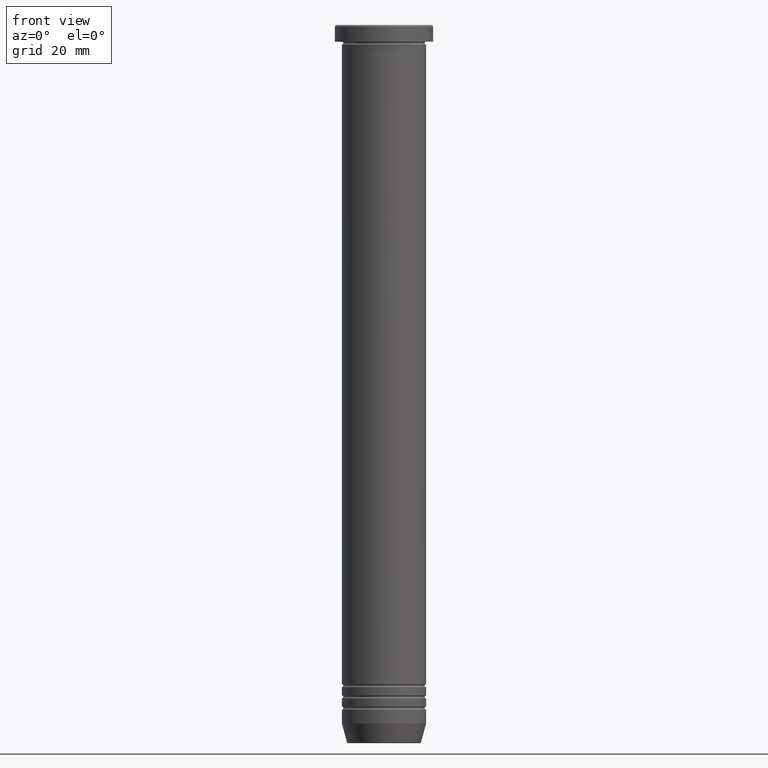
[diagram: clean part render]
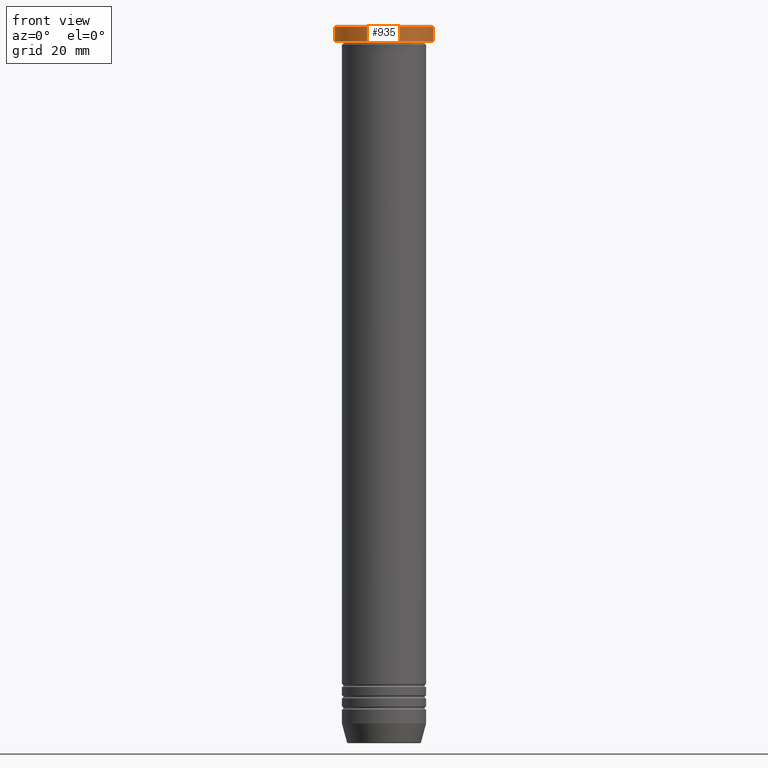
[diagram: same view with one face highlighted and labeled with its STEP entity id]
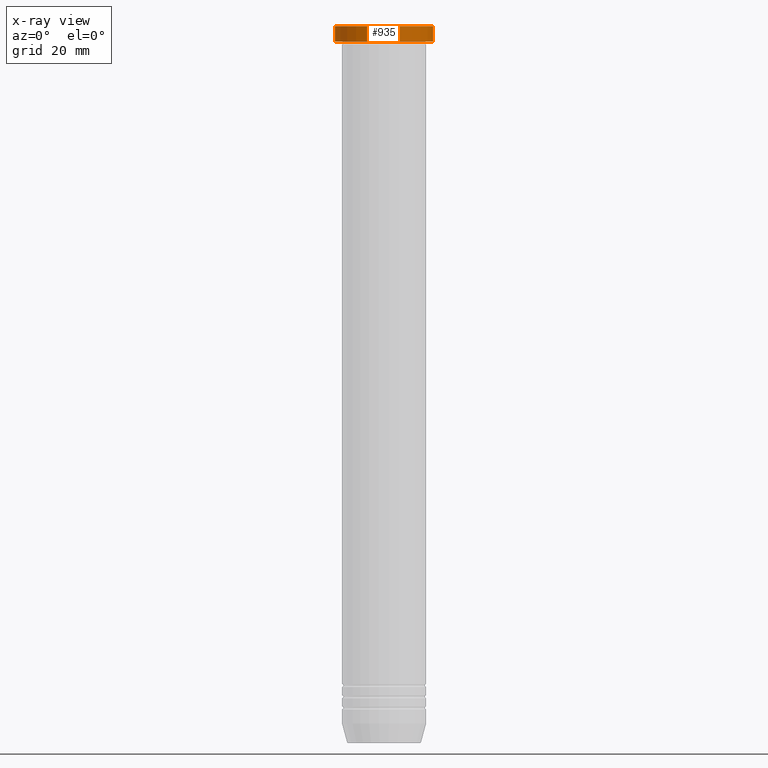
[diagram: x-ray of the same camera — body ghosted, the highlighted face saturated]
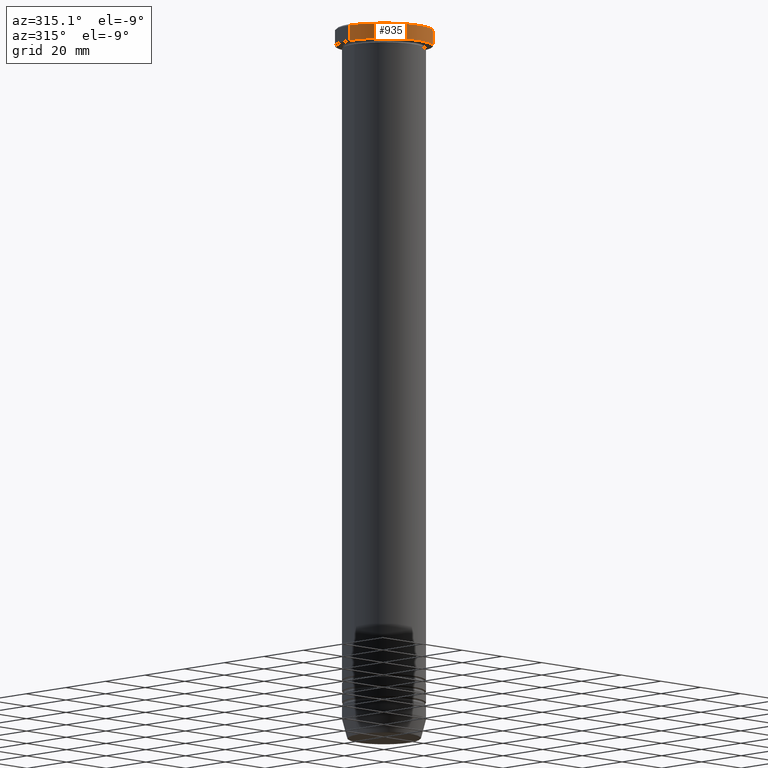
[diagram: same view with one face highlighted and labeled with its STEP entity id]
A machine part, front view. The second image highlights one B-rep face of the part: STEP entity #935.
The next image is the same camera in x-ray: the body ghosted, the highlighted face saturated — about 0% of this face is hidden behind the body in this view.
A second angle (auxiliary view) of the same face is appended — the face is thin or edge-on in the first view.
In plain terms, the highlighted cylindrical surface (partial cylindrical patch) has radius 17.5 mm, axis along (-0, -0, 1).
Its self-contained STEP definition (entity closure, byte-faithful):
#2 = CARTESIAN_POINT ( 'NONE',  ( 0.000000000000000000, 0.000000000000000000, -0.5000000000000073275 ) ) ;
#11 = CIRCLE ( 'NONE', #346, 17.50000000000000000 ) ;
#65 = CARTESIAN_POINT ( 'NONE',  ( 17.50000000000000000, 0.000000000000000000, -5.999999999999999112 ) ) ;
#94 = DIRECTION ( 'NONE',  ( 1.000000000000000000, 0.000000000000000000, 0.000000000000000000 ) ) ;
#105 = VERTEX_POINT ( 'NONE', #752 ) ;
#124 = EDGE_CURVE ( 'NONE', #251, #202, #390, .T. ) ;
#139 = CARTESIAN_POINT ( 'NONE',  ( 17.50000000000000000, 0.000000000000000000, -0.5000000000000073275 ) ) ;
#177 = DIRECTION ( 'NONE',  ( 1.000000000000000000, 0.000000000000000000, 0.000000000000000000 ) ) ;
#202 = VERTEX_POINT ( 'NONE', #139 ) ;
#251 = VERTEX_POINT ( 'NONE', #65 ) ;
#276 = ORIENTED_EDGE ( 'NONE', *, *, #124, .T. ) ;
#346 = AXIS2_PLACEMENT_3D ( 'NONE', #956, #610, #972 ) ;
#389 = ORIENTED_EDGE ( 'NONE', *, *, #1034, .F. ) ;
#390 = LINE ( 'NONE', #928, #946 ) ;
#414 = ORIENTED_EDGE ( 'NONE', *, *, #961, .T. ) ;
#540 = FACE_OUTER_BOUND ( 'NONE', #999, .T. ) ;
#544 = CIRCLE ( 'NONE', #770, 17.50000000000000000 ) ;
#593 = ORIENTED_EDGE ( 'NONE', *, *, #812, .T. ) ;
#610 = DIRECTION ( 'NONE',  ( -0.000000000000000000, -0.000000000000000000, 1.000000000000000000 ) ) ;
#617 = LINE ( 'NONE', #887, #771 ) ;
#709 = CARTESIAN_POINT ( 'NONE',  ( 0.000000000000000000, 0.000000000000000000, 0.000000000000000000 ) ) ;
#727 = CARTESIAN_POINT ( 'NONE',  ( -17.50000000000000000, 2.143131898507868248E-15, -5.999999999999999112 ) ) ;
#752 = CARTESIAN_POINT ( 'NONE',  ( -17.50000000000000000, 2.143131898507868248E-15, -0.5000000000000073275 ) ) ;
#770 = AXIS2_PLACEMENT_3D ( 'NONE', #2, #794, #94 ) ;
#771 = VECTOR ( 'NONE', #798, 1000.000000000000000 ) ;
#794 = DIRECTION ( 'NONE',  ( 0.000000000000000000, 0.000000000000000000, -1.000000000000000000 ) ) ;
#798 = DIRECTION ( 'NONE',  ( -0.000000000000000000, -0.000000000000000000, 1.000000000000000000 ) ) ;
#812 = EDGE_CURVE ( 'NONE', #202, #105, #544, .T. ) ;
#824 = DIRECTION ( 'NONE',  ( -0.000000000000000000, -0.000000000000000000, 1.000000000000000000 ) ) ;
#880 = DIRECTION ( 'NONE',  ( -0.000000000000000000, -0.000000000000000000, 1.000000000000000000 ) ) ;
#887 = CARTESIAN_POINT ( 'NONE',  ( -17.50000000000000000, 2.143131898507868248E-15, 0.000000000000000000 ) ) ;
#928 = CARTESIAN_POINT ( 'NONE',  ( 17.50000000000000000, 0.000000000000000000, 0.000000000000000000 ) ) ;
#935 = ADVANCED_FACE ( 'NONE', ( #540 ), #977, .T. ) ;
#946 = VECTOR ( 'NONE', #824, 1000.000000000000000 ) ;
#956 = CARTESIAN_POINT ( 'NONE',  ( 0.000000000000000000, 0.000000000000000000, -5.999999999999999112 ) ) ;
#961 = EDGE_CURVE ( 'NONE', #1102, #251, #11, .T. ) ;
#972 = DIRECTION ( 'NONE',  ( 1.000000000000000000, 0.000000000000000000, 0.000000000000000000 ) ) ;
#977 = CYLINDRICAL_SURFACE ( 'NONE', #1081, 17.50000000000000000 ) ;
#999 = EDGE_LOOP ( 'NONE', ( #389, #414, #276, #593 ) ) ;
#1034 = EDGE_CURVE ( 'NONE', #1102, #105, #617, .T. ) ;
#1081 = AXIS2_PLACEMENT_3D ( 'NONE', #709, #880, #177 ) ;
#1102 = VERTEX_POINT ( 'NONE', #727 ) ;